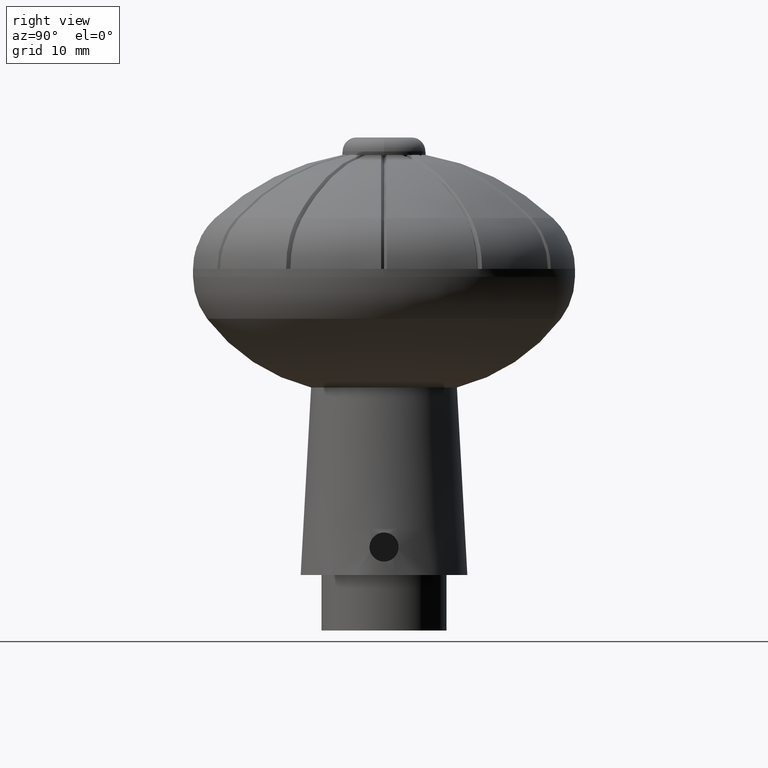
[diagram: clean part render]
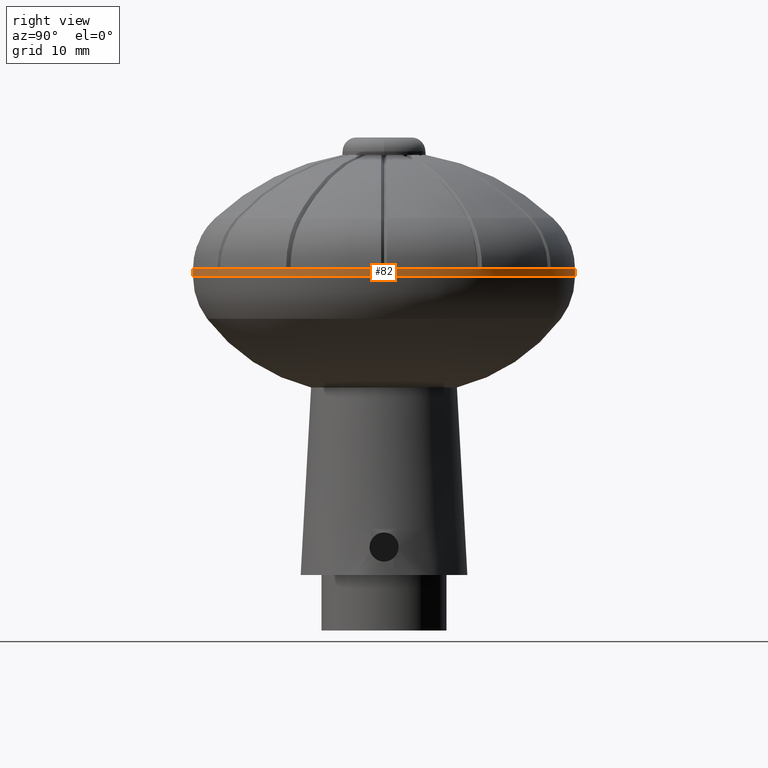
[diagram: same view with one face highlighted and labeled with its STEP entity id]
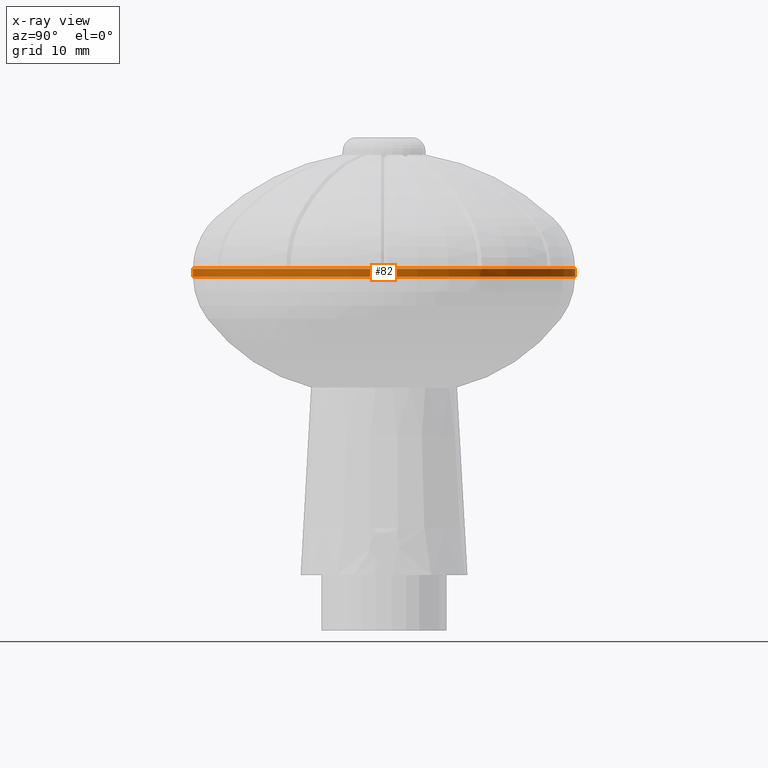
[diagram: x-ray of the same camera — body ghosted, the highlighted face saturated]
A machine part, right view. The second image highlights one B-rep face of the part: STEP entity #82.
The next image is the same camera in x-ray: the body ghosted, the highlighted face saturated — about 0% of this face is hidden behind the body in this view.
In plain terms, the highlighted cylindrical surface (partial cylindrical patch) has radius 27.5 mm, axis along (-0, -0, 1).
Its self-contained STEP definition (entity closure, byte-faithful):
#3 = EDGE_CURVE ( 'NONE', #4980, #4853, #10724, .T. ) ;
#37 = DIRECTION ( 'NONE',  ( -0.0000000000000000000, -2.423510738497009600E-016, 1.000000000000000000 ) ) ;
#64 = VECTOR ( 'NONE', #9674, 1000.000000000000000 ) ;
#82 = ADVANCED_FACE ( 'NONE', ( #10395 ), #1303, .T. ) ;
#140 = DIRECTION ( 'NONE',  ( 0.0000000000000000000, 1.000000000000000000, 2.523234146875355500E-016 ) ) ;
#235 = CARTESIAN_POINT ( 'NONE',  ( 14.10946417304422900, 23.60451272001990800, 17.07949889093105600 ) ) ;
#427 = DIRECTION ( 'NONE',  ( 0.0000000000000000000, 1.000000000000000000, 2.523234146875355500E-016 ) ) ;
#469 = VERTEX_POINT ( 'NONE', #12663 ) ;
#590 = CIRCLE ( 'NONE', #5195, 27.50000000000000400 ) ;
#804 = CARTESIAN_POINT ( 'NONE',  ( 0.0000000000000000000, -4.139234897031917100E-015, 17.07949889093104900 ) ) ;
#880 = CIRCLE ( 'NONE', #4100, 27.50000000000000400 ) ;
#905 = CARTESIAN_POINT ( 'NONE',  ( 0.0000000000000000000, -27.50000000000001100, 33.99999999999999300 ) ) ;
#932 = CIRCLE ( 'NONE', #4216, 27.50000000000000400 ) ;
#956 = CARTESIAN_POINT ( 'NONE',  ( 0.0000000000000000000, -4.139234897031917100E-015, 17.07949889093104900 ) ) ;
#1049 = VERTEX_POINT ( 'NONE', #3451 ) ;
#1062 = EDGE_CURVE ( 'NONE', #4853, #11338, #932, .T. ) ;
#1280 = VECTOR ( 'NONE', #37, 1000.000000000000000 ) ;
#1303 = CYLINDRICAL_SURFACE ( 'NONE', #9873, 27.50000000000000400 ) ;
#1328 = ORIENTED_EDGE ( 'NONE', *, *, #3, .T. ) ;
#1388 = EDGE_LOOP ( 'NONE', ( #12310, #13271, #7872, #12216, #12022, #13836, #3776, #12333, #9009, #10383, #10828, #10804, #1328, #1396, #10583, #11962 ) ) ;
#1396 = ORIENTED_EDGE ( 'NONE', *, *, #1062, .T. ) ;
#1700 = DIRECTION ( 'NONE',  ( 0.0000000000000000000, 1.000000000000000000, 2.523234146875355500E-016 ) ) ;
#1812 = CIRCLE ( 'NONE', #2510, 27.50000000000000400 ) ;
#1917 = VERTEX_POINT ( 'NONE', #12710 ) ;
#1939 = DIRECTION ( 'NONE',  ( 0.0000000000000000000, 1.000000000000000000, 2.523234146875355500E-016 ) ) ;
#2041 = EDGE_CURVE ( 'NONE', #1917, #10138, #9898, .T. ) ;
#2095 = DIRECTION ( 'NONE',  ( 0.0000000000000000000, 1.000000000000000000, 2.523234146875355500E-016 ) ) ;
#2508 = DIRECTION ( 'NONE',  ( 0.0000000000000000000, 2.423510738497009600E-016, -1.000000000000000000 ) ) ;
#2510 = AXIS2_PLACEMENT_3D ( 'NONE', #3700, #11364, #4827 ) ;
#3100 = DIRECTION ( 'NONE',  ( 0.0000000000000000000, 2.423510738497009600E-016, -1.000000000000000000 ) ) ;
#3156 = CARTESIAN_POINT ( 'NONE',  ( 0.0000000000000000000, -4.139234897031917100E-015, 17.07949889093104900 ) ) ;
#3286 = CARTESIAN_POINT ( 'NONE',  ( 13.38737557296793300, -24.02141076765272100, 17.07949889093104200 ) ) ;
#3451 = CARTESIAN_POINT ( 'NONE',  ( 3.367778697655222100E-015, 27.50000000000000000, 15.93585845096833300 ) ) ;
#3497 = AXIS2_PLACEMENT_3D ( 'NONE', #956, #8632, #2095 ) ;
#3700 = CARTESIAN_POINT ( 'NONE',  ( 0.0000000000000000000, -4.139234897031917100E-015, 17.07949889093104900 ) ) ;
#3753 = CARTESIAN_POINT ( 'NONE',  ( 0.4168980476330994600, -27.49683974601227000, 17.07949889093103500 ) ) ;
#3776 = ORIENTED_EDGE ( 'NONE', *, *, #2041, .T. ) ;
#4062 = EDGE_CURVE ( 'NONE', #8204, #1917, #6165, .T. ) ;
#4100 = AXIS2_PLACEMENT_3D ( 'NONE', #13255, #6732, #140 ) ;
#4216 = AXIS2_PLACEMENT_3D ( 'NONE', #11044, #7249, #13781 ) ;
#4247 = VERTEX_POINT ( 'NONE', #6307 ) ;
#4274 = DIRECTION ( 'NONE',  ( 0.0000000000000000000, 1.000000000000000000, 2.523234146875355500E-016 ) ) ;
#4354 = CARTESIAN_POINT ( 'NONE',  ( 0.0000000000000000000, -3.862072408309006100E-015, 15.93585845096832500 ) ) ;
#4481 = CARTESIAN_POINT ( 'NONE',  ( 0.0000000000000000000, -4.139234897031917100E-015, 17.07949889093104900 ) ) ;
#4483 = CARTESIAN_POINT ( 'NONE',  ( 0.0000000000000000000, -4.139234897031917100E-015, 17.07949889093104900 ) ) ;
#4641 = DIRECTION ( 'NONE',  ( -0.0000000000000000000, -2.423510738497009600E-016, 1.000000000000000000 ) ) ;
#4772 = AXIS2_PLACEMENT_3D ( 'NONE', #11419, #10314, #427 ) ;
#4803 = EDGE_CURVE ( 'NONE', #11338, #12535, #9702, .T. ) ;
#4827 = DIRECTION ( 'NONE',  ( 0.0000000000000000000, 1.000000000000000000, 2.523234146875355500E-016 ) ) ;
#4853 = VERTEX_POINT ( 'NONE', #3286 ) ;
#4980 = VERTEX_POINT ( 'NONE', #13310 ) ;
#5040 = CARTESIAN_POINT ( 'NONE',  ( 0.0000000000000000000, -4.139234897031917100E-015, 17.07949889093104900 ) ) ;
#5195 = AXIS2_PLACEMENT_3D ( 'NONE', #5375, #12985, #6463 ) ;
#5375 = CARTESIAN_POINT ( 'NONE',  ( 0.0000000000000000000, -4.139234897031917100E-015, 17.07949889093104900 ) ) ;
#5453 = DIRECTION ( 'NONE',  ( 0.0000000000000000000, 1.000000000000000000, 2.523234146875355500E-016 ) ) ;
#5513 = CARTESIAN_POINT ( 'NONE',  ( 24.02141076765267500, 13.38737557296801100, 17.07949889093105300 ) ) ;
#5529 = AXIS2_PLACEMENT_3D ( 'NONE', #5888, #13502, #6962 ) ;
#5548 = AXIS2_PLACEMENT_3D ( 'NONE', #4354, #11993, #5453 ) ;
#5580 = DIRECTION ( 'NONE',  ( 0.0000000000000000000, 1.000000000000000000, 2.523234146875355500E-016 ) ) ;
#5581 = DIRECTION ( 'NONE',  ( 0.0000000000000000000, 1.000000000000000000, 2.523234146875355500E-016 ) ) ;
#5888 = CARTESIAN_POINT ( 'NONE',  ( 0.0000000000000000000, -4.139234897031917100E-015, 17.07949889093104900 ) ) ;
#6165 = CIRCLE ( 'NONE', #5529, 27.50000000000000400 ) ;
#6251 = CARTESIAN_POINT ( 'NONE',  ( 27.49683974601226000, 0.4168980476333839500, 17.07949889093104200 ) ) ;
#6281 = EDGE_CURVE ( 'NONE', #11510, #7936, #6625, .T. ) ;
#6307 = CARTESIAN_POINT ( 'NONE',  ( 3.367778697655222100E-015, 27.50000000000000000, 17.07949889093105600 ) ) ;
#6445 = EDGE_CURVE ( 'NONE', #7936, #10941, #8149, .T. ) ;
#6463 = DIRECTION ( 'NONE',  ( 0.0000000000000000000, 1.000000000000000000, 2.523234146875355500E-016 ) ) ;
#6623 = CARTESIAN_POINT ( 'NONE',  ( 3.367778697655222100E-015, 27.49999999999999600, 34.00000000000000700 ) ) ;
#6625 = CIRCLE ( 'NONE', #8809, 27.50000000000000400 ) ;
#6732 = DIRECTION ( 'NONE',  ( 0.0000000000000000000, 2.423510738497009600E-016, -1.000000000000000000 ) ) ;
#6962 = DIRECTION ( 'NONE',  ( 0.0000000000000000000, 1.000000000000000000, 2.523234146875355500E-016 ) ) ;
#7216 = VERTEX_POINT ( 'NONE', #12525 ) ;
#7217 = AXIS2_PLACEMENT_3D ( 'NONE', #9062, #2508, #10158 ) ;
#7249 = DIRECTION ( 'NONE',  ( 0.0000000000000000000, 2.423510738497009600E-016, -1.000000000000000000 ) ) ;
#7334 = EDGE_CURVE ( 'NONE', #469, #12535, #13938, .T. ) ;
#7557 = CIRCLE ( 'NONE', #7217, 27.50000000000000400 ) ;
#7633 = AXIS2_PLACEMENT_3D ( 'NONE', #3156, #10805, #4274 ) ;
#7789 = EDGE_CURVE ( 'NONE', #1049, #4247, #11586, .T. ) ;
#7807 = EDGE_CURVE ( 'NONE', #14191, #4980, #8651, .T. ) ;
#7872 = ORIENTED_EDGE ( 'NONE', *, *, #12912, .T. ) ;
#7936 = VERTEX_POINT ( 'NONE', #9108 ) ;
#8094 = EDGE_CURVE ( 'NONE', #469, #1049, #9842, .T. ) ;
#8149 = CIRCLE ( 'NONE', #13927, 27.50000000000000400 ) ;
#8204 = VERTEX_POINT ( 'NONE', #235 ) ;
#8475 = DIRECTION ( 'NONE',  ( 0.0000000000000000000, 2.423510738497009600E-016, -1.000000000000000000 ) ) ;
#8632 = DIRECTION ( 'NONE',  ( 0.0000000000000000000, 2.423510738497009600E-016, -1.000000000000000000 ) ) ;
#8651 = CIRCLE ( 'NONE', #10919, 27.50000000000000400 ) ;
#8809 = AXIS2_PLACEMENT_3D ( 'NONE', #804, #8475, #1939 ) ;
#9009 = ORIENTED_EDGE ( 'NONE', *, *, #6281, .T. ) ;
#9062 = CARTESIAN_POINT ( 'NONE',  ( 0.0000000000000000000, -4.139234897031917100E-015, 17.07949889093104900 ) ) ;
#9108 = CARTESIAN_POINT ( 'NONE',  ( 27.49683974601227000, -0.4168980476328114600, 17.07949889093104900 ) ) ;
#9180 = CIRCLE ( 'NONE', #7633, 27.50000000000000400 ) ;
#9458 = EDGE_CURVE ( 'NONE', #10138, #11510, #1812, .T. ) ;
#9674 = DIRECTION ( 'NONE',  ( -0.0000000000000000000, -2.423510738497009600E-016, 1.000000000000000000 ) ) ;
#9702 = CIRCLE ( 'NONE', #3497, 27.50000000000000400 ) ;
#9715 = EDGE_CURVE ( 'NONE', #10941, #14191, #9180, .T. ) ;
#9842 = CIRCLE ( 'NONE', #5548, 27.50000000000000400 ) ;
#9873 = AXIS2_PLACEMENT_3D ( 'NONE', #11276, #4641, #11176 ) ;
#9898 = CIRCLE ( 'NONE', #14180, 27.50000000000000400 ) ;
#10067 = EDGE_CURVE ( 'NONE', #7216, #12683, #590, .T. ) ;
#10138 = VERTEX_POINT ( 'NONE', #5513 ) ;
#10158 = DIRECTION ( 'NONE',  ( 0.0000000000000000000, 1.000000000000000000, 2.523234146875355500E-016 ) ) ;
#10314 = DIRECTION ( 'NONE',  ( 0.0000000000000000000, 2.423510738497009600E-016, -1.000000000000000000 ) ) ;
#10383 = ORIENTED_EDGE ( 'NONE', *, *, #6445, .T. ) ;
#10395 = FACE_OUTER_BOUND ( 'NONE', #1388, .T. ) ;
#10583 = ORIENTED_EDGE ( 'NONE', *, *, #4803, .T. ) ;
#10724 = CIRCLE ( 'NONE', #4772, 27.50000000000000400 ) ;
#10804 = ORIENTED_EDGE ( 'NONE', *, *, #7807, .T. ) ;
#10805 = DIRECTION ( 'NONE',  ( 0.0000000000000000000, 2.423510738497009600E-016, -1.000000000000000000 ) ) ;
#10828 = ORIENTED_EDGE ( 'NONE', *, *, #9715, .T. ) ;
#10919 = AXIS2_PLACEMENT_3D ( 'NONE', #4481, #12119, #5580 ) ;
#10941 = VERTEX_POINT ( 'NONE', #11217 ) ;
#11044 = CARTESIAN_POINT ( 'NONE',  ( 0.0000000000000000000, -4.139234897031917100E-015, 17.07949889093104900 ) ) ;
#11176 = DIRECTION ( 'NONE',  ( 0.0000000000000000000, -1.000000000000000000, -2.523234146875355500E-016 ) ) ;
#11217 = CARTESIAN_POINT ( 'NONE',  ( 24.02141076765294500, -13.38737557296751400, 17.07949889093103800 ) ) ;
#11276 = CARTESIAN_POINT ( 'NONE',  ( 0.0000000000000000000, -8.239936510889833700E-015, 34.00000000000000000 ) ) ;
#11338 = VERTEX_POINT ( 'NONE', #3753 ) ;
#11364 = DIRECTION ( 'NONE',  ( 0.0000000000000000000, 2.423510738497009600E-016, -1.000000000000000000 ) ) ;
#11419 = CARTESIAN_POINT ( 'NONE',  ( 0.0000000000000000000, -4.139234897031917100E-015, 17.07949889093104900 ) ) ;
#11510 = VERTEX_POINT ( 'NONE', #6251 ) ;
#11586 = LINE ( 'NONE', #6623, #1280 ) ;
#11962 = ORIENTED_EDGE ( 'NONE', *, *, #7334, .F. ) ;
#11993 = DIRECTION ( 'NONE',  ( -0.0000000000000000000, -2.423510738497009600E-016, 1.000000000000000000 ) ) ;
#12022 = ORIENTED_EDGE ( 'NONE', *, *, #14157, .T. ) ;
#12044 = CARTESIAN_POINT ( 'NONE',  ( 13.38737557296742300, 24.02141076765299100, 17.07949889093104500 ) ) ;
#12119 = DIRECTION ( 'NONE',  ( 0.0000000000000000000, 2.423510738497009600E-016, -1.000000000000000000 ) ) ;
#12120 = DIRECTION ( 'NONE',  ( 0.0000000000000000000, 2.423510738497009600E-016, -1.000000000000000000 ) ) ;
#12216 = ORIENTED_EDGE ( 'NONE', *, *, #10067, .T. ) ;
#12310 = ORIENTED_EDGE ( 'NONE', *, *, #8094, .T. ) ;
#12333 = ORIENTED_EDGE ( 'NONE', *, *, #9458, .T. ) ;
#12525 = CARTESIAN_POINT ( 'NONE',  ( 0.4168980476330995100, 27.49683974601226700, 17.07949889093105600 ) ) ;
#12535 = VERTEX_POINT ( 'NONE', #12745 ) ;
#12663 = CARTESIAN_POINT ( 'NONE',  ( 0.0000000000000000000, -27.50000000000000700, 15.93585845096831800 ) ) ;
#12683 = VERTEX_POINT ( 'NONE', #12044 ) ;
#12710 = CARTESIAN_POINT ( 'NONE',  ( 23.60451272001956700, 14.10946417304480100, 17.07949889093104500 ) ) ;
#12745 = CARTESIAN_POINT ( 'NONE',  ( 0.0000000000000000000, -27.50000000000000700, 17.07949889093104200 ) ) ;
#12912 = EDGE_CURVE ( 'NONE', #4247, #7216, #880, .T. ) ;
#12985 = DIRECTION ( 'NONE',  ( 0.0000000000000000000, 2.423510738497009600E-016, -1.000000000000000000 ) ) ;
#13255 = CARTESIAN_POINT ( 'NONE',  ( 0.0000000000000000000, -4.139234897031917100E-015, 17.07949889093104900 ) ) ;
#13271 = ORIENTED_EDGE ( 'NONE', *, *, #7789, .T. ) ;
#13310 = CARTESIAN_POINT ( 'NONE',  ( 14.10946417304472100, -23.60451272001961300, 17.07949889093103500 ) ) ;
#13447 = CARTESIAN_POINT ( 'NONE',  ( 23.60451272001986200, -14.10946417304431900, 17.07949889093104500 ) ) ;
#13502 = DIRECTION ( 'NONE',  ( 0.0000000000000000000, 2.423510738497009600E-016, -1.000000000000000000 ) ) ;
#13781 = DIRECTION ( 'NONE',  ( 0.0000000000000000000, 1.000000000000000000, 2.523234146875355500E-016 ) ) ;
#13836 = ORIENTED_EDGE ( 'NONE', *, *, #4062, .T. ) ;
#13927 = AXIS2_PLACEMENT_3D ( 'NONE', #4483, #12120, #5581 ) ;
#13938 = LINE ( 'NONE', #905, #64 ) ;
#14157 = EDGE_CURVE ( 'NONE', #12683, #8204, #7557, .T. ) ;
#14180 = AXIS2_PLACEMENT_3D ( 'NONE', #5040, #3100, #1700 ) ;
#14191 = VERTEX_POINT ( 'NONE', #13447 ) ;